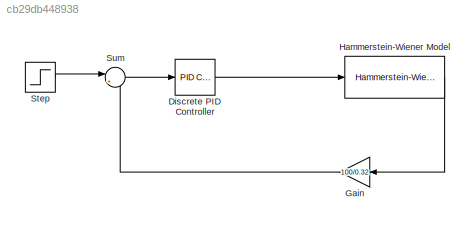
MODEL slx_cb29db448938
KIND model
CONFIG AbsTol = auto
CONFIG EnableMultiTasking = off
CONFIG FixedStep = auto
CONFIG MaxStep = auto
CONFIG MinStep = auto
CONFIG RelTol = 1e-3
CONFIG SampleTimeConstraint = Unconstrained
CONFIG SolverName = VariableStepAuto
CONFIG StartTime = 0.0
CONFIG StopTime = 4.0
BLOCK [Reference] Discrete PID Controller  REF=pid_lib/PID Controller
  Ports = [1, 1]
  SourceBlock = pid_lib/PID Controller
  SourceProductBaseCode = SL
  SourceType = PID 1dof
BLOCK [Gain] Gain
  Gain = 100/0.32
BLOCK [Reference] Hammerstein-Wiener Model  REF=slident/Models/Hammerstein-Wiener Model  (lib defined in mdl_f7d4911ca73a)
  Ports = [1, 1]
  SourceBlock = slident/Models/Hammerstein-Wiener Model
  SourceProductBaseCode = ID
  SourceType = Hammerstein-Wiener Model
BLOCK [Step] Step
  After = 50
  SampleTime = 0.001
BLOCK [Sum] Sum
  Inputs = |+-
  Ports = [2, 1]
LINE Discrete PID Controller:1 -> Hammerstein-Wiener Model:1
LINE Gain:1 -> Sum:2
LINE Hammerstein-Wiener Model:1 -> Gain:1
LINE Step:1 -> Sum:1
LINE Sum:1 -> Discrete PID Controller:1
